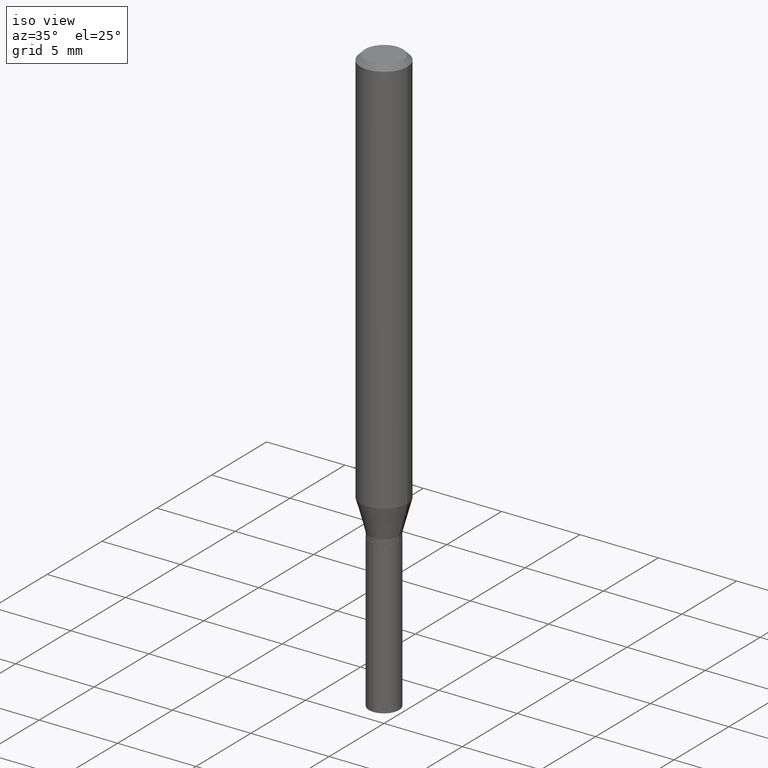
[diagram: clean part render]
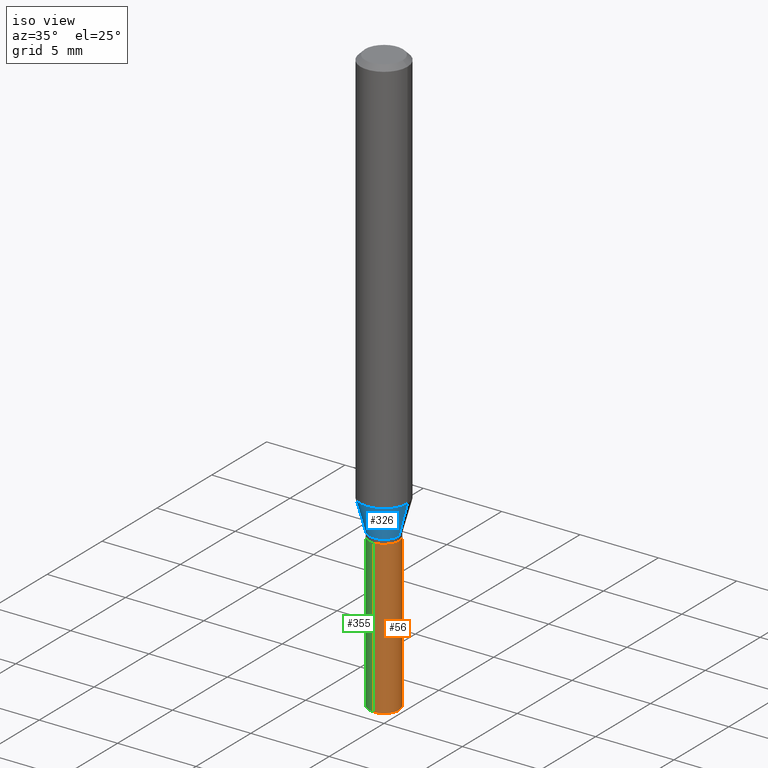
[diagram: same view with three faces highlighted in distinct colors, each labeled with its STEP entity id]
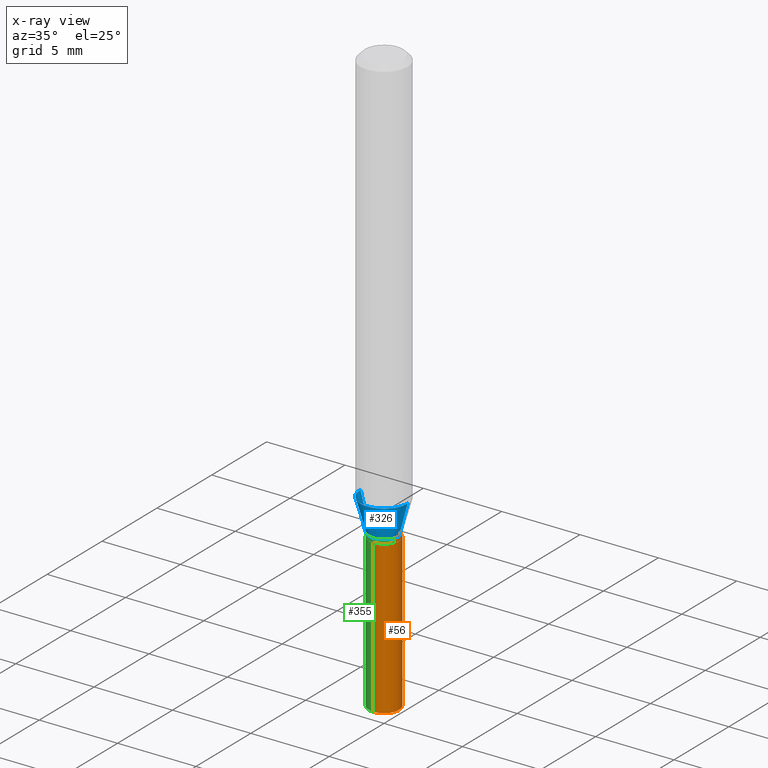
[diagram: x-ray of the same camera — body ghosted, the three highlighted faces saturated]
A machine part, iso view with three faces highlighted in distinct colors.
The next image is the same camera in x-ray (body ghosted, the three faces saturated) — at least one of them is partly hidden behind the body in this view.
Their STEP definitions:

[orange] entity #56 — the highlighted cylindrical surface (edge-blend (fillet) strip) has radius 0.9601 mm, axis along (-0, 0, 1).
#3 = CARTESIAN_POINT ( 'NONE',  ( -2.639559892165140833E-16, -0.03780000000000381666, -1.094499999999999806 ) ) ;
#12 = DIRECTION ( 'NONE',  ( -6.982962677686265922E-15, -1.000000000000000000, 0.000000000000000000 ) ) ;
#26 = EDGE_LOOP ( 'NONE', ( #248, #136, #359, #379 ) ) ;
#44 = DIRECTION ( 'NONE',  ( -2.445458899330790108E-29, 3.491495526022433599E-15, 1.000000000000000000 ) ) ;
#56 = ADVANCED_FACE ( 'NONE', ( #244 ), #214, .T. ) ;
#58 = DIRECTION ( 'NONE',  ( -6.982962677686265922E-15, -1.000000000000000000, 3.613555547174951347E-15 ) ) ;
#78 = EDGE_CURVE ( 'NONE', #332, #400, #121, .T. ) ;
#79 = LINE ( 'NONE', #255, #200 ) ;
#91 = CARTESIAN_POINT ( 'NONE',  ( 2.685851541173539625E-16, 0.03779999999999483773, -1.478473570521741109 ) ) ;
#120 = CARTESIAN_POINT ( 'NONE',  ( -2.639559892165140833E-16, -0.03780000000000381666, -1.094499999999999806 ) ) ;
#121 = LINE ( 'NONE', #3, #383 ) ;
#136 = ORIENTED_EDGE ( 'NONE', *, *, #431, .T. ) ;
#160 = CARTESIAN_POINT ( 'NONE',  ( -2.639559892165046662E-16, -0.03780000000000515586, -1.478473570521741109 ) ) ;
#166 = DIRECTION ( 'NONE',  ( -2.445458899330790108E-29, 3.491495526022433205E-15, 1.000000000000000000 ) ) ;
#169 = EDGE_CURVE ( 'NONE', #332, #263, #308, .T. ) ;
#180 = DIRECTION ( 'NONE',  ( -6.982962677686265922E-15, -1.000000000000000000, 3.613555547174951347E-15 ) ) ;
#200 = VECTOR ( 'NONE', #269, 39.37007874015748143 ) ;
#211 = DIRECTION ( 'NONE',  ( -2.445458899330790108E-29, 3.491495526022433205E-15, 1.000000000000000000 ) ) ;
#214 = CYLINDRICAL_SURFACE ( 'NONE', #297, 0.03780000000000000027 ) ;
#244 = FACE_OUTER_BOUND ( 'NONE', #26, .T. ) ;
#248 = ORIENTED_EDGE ( 'NONE', *, *, #169, .T. ) ;
#255 = CARTESIAN_POINT ( 'NONE',  ( 2.685851541173445948E-16, 0.03779999999999617694, -1.094500000000000028 ) ) ;
#256 = EDGE_CURVE ( 'NONE', #400, #478, #440, .T. ) ;
#263 = VERTEX_POINT ( 'NONE', #91 ) ;
#267 = CARTESIAN_POINT ( 'NONE',  ( 2.676565608369631794E-29, -3.821426325363822773E-15, -1.094499999999999806 ) ) ;
#269 = DIRECTION ( 'NONE',  ( -2.445458899330790108E-29, 3.491495526022433599E-15, 1.000000000000000000 ) ) ;
#278 = AXIS2_PLACEMENT_3D ( 'NONE', #267, #166, #58 ) ;
#297 = AXIS2_PLACEMENT_3D ( 'NONE', #405, #211, #180 ) ;
#308 = CIRCLE ( 'NONE', #374, 0.03780000000000000027 ) ;
#332 = VERTEX_POINT ( 'NONE', #160 ) ;
#351 = CARTESIAN_POINT ( 'NONE',  ( 2.685851541173540611E-16, 0.03779999999999617694, -1.094500000000000028 ) ) ;
#359 = ORIENTED_EDGE ( 'NONE', *, *, #256, .F. ) ;
#374 = AXIS2_PLACEMENT_3D ( 'NONE', #452, #414, #12 ) ;
#379 = ORIENTED_EDGE ( 'NONE', *, *, #78, .F. ) ;
#383 = VECTOR ( 'NONE', #44, 39.37007874015748143 ) ;
#400 = VERTEX_POINT ( 'NONE', #120 ) ;
#405 = CARTESIAN_POINT ( 'NONE',  ( 2.676565608369631794E-29, -3.821426325363822773E-15, -1.094499999999999806 ) ) ;
#414 = DIRECTION ( 'NONE',  ( -2.445458899330790108E-29, 3.491495526022433205E-15, 1.000000000000000000 ) ) ;
#431 = EDGE_CURVE ( 'NONE', #263, #478, #79, .T. ) ;
#440 = CIRCLE ( 'NONE', #278, 0.03780000000000000027 ) ;
#452 = CARTESIAN_POINT ( 'NONE',  ( 3.615557193509842490E-29, -5.162068328951341351E-15, -1.478473570521741109 ) ) ;
#478 = VERTEX_POINT ( 'NONE', #351 ) ;

[blue] entity #326 — the highlighted conical surface has half-angle 15 deg.
#7 = LINE ( 'NONE', #291, #465 ) ;
#34 = EDGE_CURVE ( 'NONE', #182, #287, #217, .T. ) ;
#36 = VECTOR ( 'NONE', #72, 39.37007874015748854 ) ;
#54 = CARTESIAN_POINT ( 'NONE',  ( -0.03780000000000000027, -3.532241431347330370E-15, -1.083199999999999941 ) ) ;
#60 = CIRCLE ( 'NONE', #455, 0.05905000000000011628 ) ;
#66 = CARTESIAN_POINT ( 'NONE',  ( -0.03780000000000000027, -3.513387432117577343E-15, -1.083199999999999941 ) ) ;
#69 = FACE_OUTER_BOUND ( 'NONE', #100, .T. ) ;
#72 = DIRECTION ( 'NONE',  ( -0.2588190451025211836, 5.211531920934547886E-15, 0.9659258262890679791 ) ) ;
#99 = ORIENTED_EDGE ( 'NONE', *, *, #139, .T. ) ;
#100 = EDGE_LOOP ( 'NONE', ( #205, #114, #99, #257 ) ) ;
#110 = CONICAL_SURFACE ( 'NONE', #236, 0.03780000000000000027, 0.2617993877991499074 ) ;
#111 = DIRECTION ( 'NONE',  ( 1.000000000000000000, -6.982962677686266711E-15, 0.000000000000000000 ) ) ;
#114 = ORIENTED_EDGE ( 'NONE', *, *, #115, .T. ) ;
#115 = EDGE_CURVE ( 'NONE', #182, #204, #172, .T. ) ;
#139 = EDGE_CURVE ( 'NONE', #204, #283, #7, .T. ) ;
#148 = CARTESIAN_POINT ( 'NONE',  ( 2.454991266908324597E-29, -3.505076889042267956E-15, -1.003893920339161028 ) ) ;
#172 = CIRCLE ( 'NONE', #221, 0.03780000000000000027 ) ;
#182 = VERTEX_POINT ( 'NONE', #54 ) ;
#185 = CARTESIAN_POINT ( 'NONE',  ( 0.03780000000000000027, -4.045928575451436021E-15, -1.083199999999999941 ) ) ;
#194 = DIRECTION ( 'NONE',  ( 0.2588190451025211836, 1.565188264969622559E-15, 0.9659258262890679791 ) ) ;
#204 = VERTEX_POINT ( 'NONE', #185 ) ;
#205 = ORIENTED_EDGE ( 'NONE', *, *, #34, .F. ) ;
#210 = CARTESIAN_POINT ( 'NONE',  ( 2.648931810859739974E-29, -3.781972586234895215E-15, -1.083199999999999941 ) ) ;
#217 = LINE ( 'NONE', #66, #36 ) ;
#221 = AXIS2_PLACEMENT_3D ( 'NONE', #424, #417, #344 ) ;
#236 = AXIS2_PLACEMENT_3D ( 'NONE', #210, #322, #245 ) ;
#245 = DIRECTION ( 'NONE',  ( 1.000000000000000000, -6.982962677686271444E-15, 0.000000000000000000 ) ) ;
#257 = ORIENTED_EDGE ( 'NONE', *, *, #294, .F. ) ;
#283 = VERTEX_POINT ( 'NONE', #476 ) ;
#285 = CARTESIAN_POINT ( 'NONE',  ( -0.05905000000000011628, -3.085501403575928068E-15, -1.003893920339161028 ) ) ;
#287 = VERTEX_POINT ( 'NONE', #285 ) ;
#291 = CARTESIAN_POINT ( 'NONE',  ( 0.03780000000000000027, -4.045928575451436021E-15, -1.083199999999999941 ) ) ;
#294 = EDGE_CURVE ( 'NONE', #287, #283, #60, .T. ) ;
#322 = DIRECTION ( 'NONE',  ( -2.445468806185136597E-29, 3.491481338843145583E-15, 1.000000000000000000 ) ) ;
#326 = ADVANCED_FACE ( 'NONE', ( #69 ), #110, .T. ) ;
#344 = DIRECTION ( 'NONE',  ( 1.000000000000000000, -6.982962677686271444E-15, 0.000000000000000000 ) ) ;
#417 = DIRECTION ( 'NONE',  ( -2.445468806185136597E-29, 3.491481338843145583E-15, 1.000000000000000000 ) ) ;
#424 = CARTESIAN_POINT ( 'NONE',  ( 2.648931810859739974E-29, -3.781972586234895215E-15, -1.083199999999999941 ) ) ;
#455 = AXIS2_PLACEMENT_3D ( 'NONE', #148, #484, #111 ) ;
#465 = VECTOR ( 'NONE', #194, 39.37007874015748854 ) ;
#476 = CARTESIAN_POINT ( 'NONE',  ( 0.05905000000000011628, -3.917420835159643665E-15, -1.003893920339161028 ) ) ;
#484 = DIRECTION ( 'NONE',  ( -2.445468806185136597E-29, 3.491481338843145583E-15, 1.000000000000000000 ) ) ;

[green] entity #355 — the highlighted cylindrical surface (edge-blend (fillet) strip) has radius 0.9601 mm, axis along (-0, 0, 1).
#3 = CARTESIAN_POINT ( 'NONE',  ( -2.639559892165140833E-16, -0.03780000000000381666, -1.094499999999999806 ) ) ;
#10 = DIRECTION ( 'NONE',  ( -2.445458899330790108E-29, 3.491495526022433205E-15, 1.000000000000000000 ) ) ;
#24 = AXIS2_PLACEMENT_3D ( 'NONE', #266, #10, #83 ) ;
#43 = AXIS2_PLACEMENT_3D ( 'NONE', #86, #369, #47 ) ;
#44 = DIRECTION ( 'NONE',  ( -2.445458899330790108E-29, 3.491495526022433599E-15, 1.000000000000000000 ) ) ;
#47 = DIRECTION ( 'NONE',  ( -6.982962677686265922E-15, -1.000000000000000000, 0.000000000000000000 ) ) ;
#48 = ORIENTED_EDGE ( 'NONE', *, *, #124, .T. ) ;
#50 = FACE_OUTER_BOUND ( 'NONE', #281, .T. ) ;
#78 = EDGE_CURVE ( 'NONE', #332, #400, #121, .T. ) ;
#79 = LINE ( 'NONE', #255, #200 ) ;
#83 = DIRECTION ( 'NONE',  ( -6.982962677686265922E-15, -1.000000000000000000, 3.613555547174951347E-15 ) ) ;
#86 = CARTESIAN_POINT ( 'NONE',  ( 3.615557193509842490E-29, -5.162068328951341351E-15, -1.478473570521741109 ) ) ;
#91 = CARTESIAN_POINT ( 'NONE',  ( 2.685851541173539625E-16, 0.03779999999999483773, -1.478473570521741109 ) ) ;
#97 = CIRCLE ( 'NONE', #43, 0.03780000000000000027 ) ;
#98 = AXIS2_PLACEMENT_3D ( 'NONE', #116, #253, #404 ) ;
#116 = CARTESIAN_POINT ( 'NONE',  ( 2.676565608369631794E-29, -3.821426325363822773E-15, -1.094499999999999806 ) ) ;
#120 = CARTESIAN_POINT ( 'NONE',  ( -2.639559892165140833E-16, -0.03780000000000381666, -1.094499999999999806 ) ) ;
#121 = LINE ( 'NONE', #3, #383 ) ;
#124 = EDGE_CURVE ( 'NONE', #263, #332, #97, .T. ) ;
#160 = CARTESIAN_POINT ( 'NONE',  ( -2.639559892165046662E-16, -0.03780000000000515586, -1.478473570521741109 ) ) ;
#200 = VECTOR ( 'NONE', #269, 39.37007874015748143 ) ;
#253 = DIRECTION ( 'NONE',  ( -2.445458899330790108E-29, 3.491495526022433205E-15, 1.000000000000000000 ) ) ;
#255 = CARTESIAN_POINT ( 'NONE',  ( 2.685851541173445948E-16, 0.03779999999999617694, -1.094500000000000028 ) ) ;
#263 = VERTEX_POINT ( 'NONE', #91 ) ;
#266 = CARTESIAN_POINT ( 'NONE',  ( 2.676565608369631794E-29, -3.821426325363822773E-15, -1.094499999999999806 ) ) ;
#269 = DIRECTION ( 'NONE',  ( -2.445458899330790108E-29, 3.491495526022433599E-15, 1.000000000000000000 ) ) ;
#281 = EDGE_LOOP ( 'NONE', ( #366, #48, #441, #362 ) ) ;
#311 = CIRCLE ( 'NONE', #98, 0.03780000000000000027 ) ;
#315 = EDGE_CURVE ( 'NONE', #478, #400, #311, .T. ) ;
#332 = VERTEX_POINT ( 'NONE', #160 ) ;
#335 = CYLINDRICAL_SURFACE ( 'NONE', #24, 0.03780000000000000027 ) ;
#351 = CARTESIAN_POINT ( 'NONE',  ( 2.685851541173540611E-16, 0.03779999999999617694, -1.094500000000000028 ) ) ;
#355 = ADVANCED_FACE ( 'NONE', ( #50 ), #335, .T. ) ;
#362 = ORIENTED_EDGE ( 'NONE', *, *, #315, .F. ) ;
#366 = ORIENTED_EDGE ( 'NONE', *, *, #431, .F. ) ;
#369 = DIRECTION ( 'NONE',  ( -2.445458899330790108E-29, 3.491495526022433205E-15, 1.000000000000000000 ) ) ;
#383 = VECTOR ( 'NONE', #44, 39.37007874015748143 ) ;
#400 = VERTEX_POINT ( 'NONE', #120 ) ;
#404 = DIRECTION ( 'NONE',  ( -6.982962677686265922E-15, -1.000000000000000000, 3.613555547174951347E-15 ) ) ;
#431 = EDGE_CURVE ( 'NONE', #263, #478, #79, .T. ) ;
#441 = ORIENTED_EDGE ( 'NONE', *, *, #78, .T. ) ;
#478 = VERTEX_POINT ( 'NONE', #351 ) ;